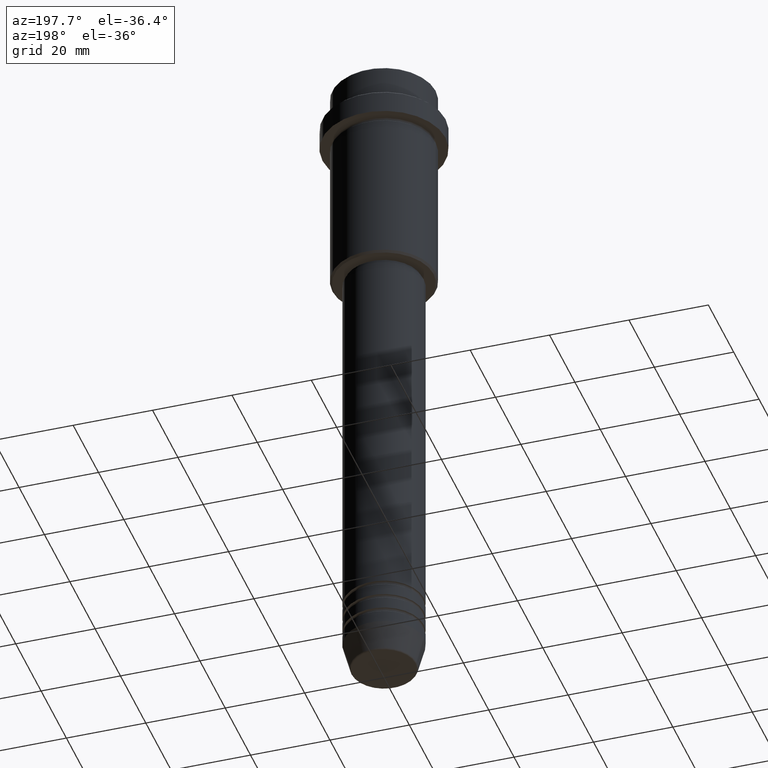
[diagram: clean part render]
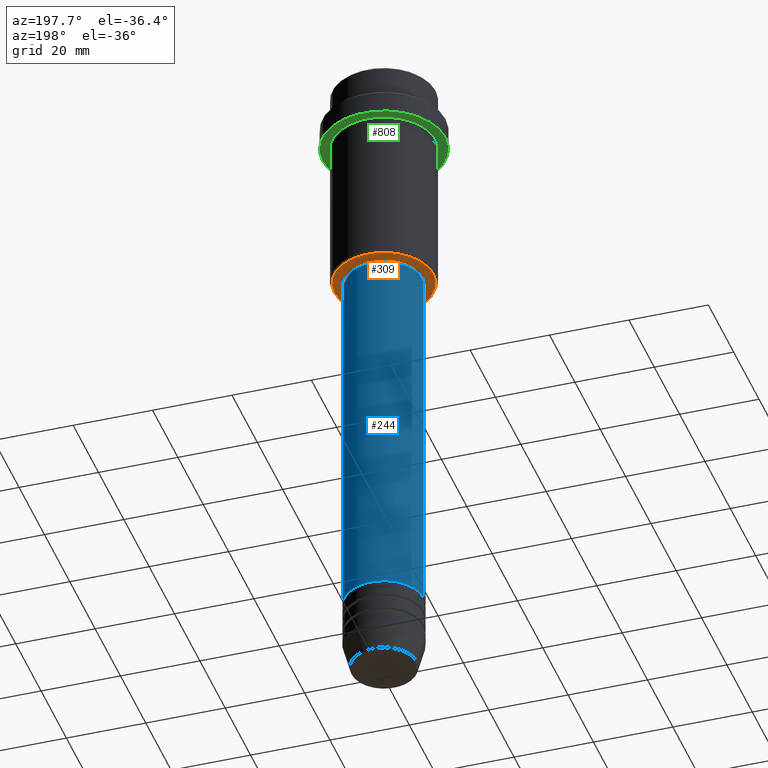
[diagram: same view with three faces highlighted in distinct colors, each labeled with its STEP entity id]
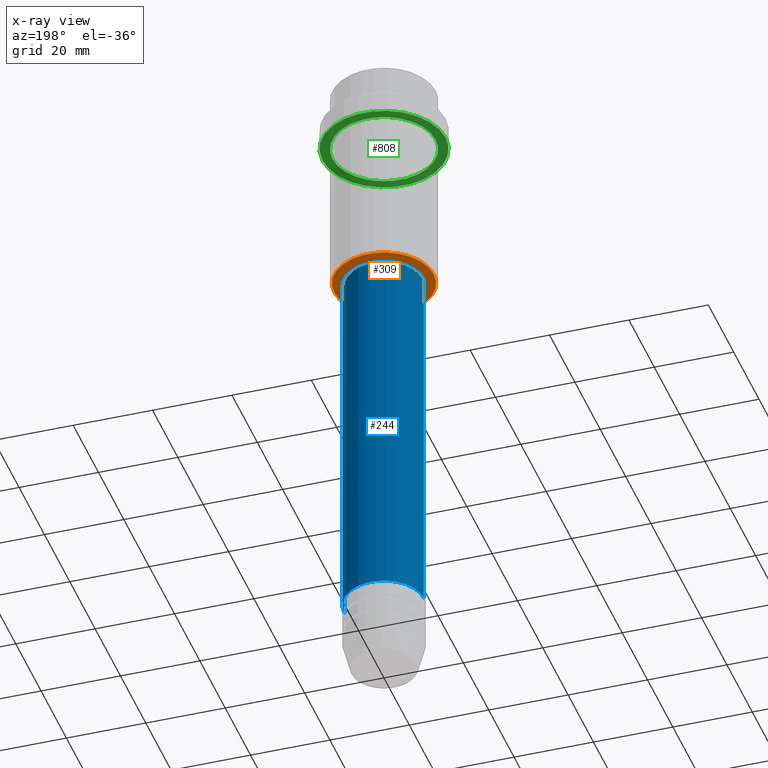
[diagram: x-ray of the same camera — body ghosted, the three highlighted faces saturated]
A machine part, auxiliary view with three faces highlighted in distinct colors.
The next image is the same camera in x-ray (body ghosted, the three faces saturated) — at least one of them is partly hidden behind the body in this view.
Their STEP definitions:

[orange] entity #309 — the highlighted planar face has unit normal (0, 0, -1).
#156 = EDGE_CURVE ( 'NONE', #224, #559, #638, .T. ) ;
#179 = DIRECTION ( 'NONE',  ( 0.000000000000000000, 0.000000000000000000, -1.000000000000000000 ) ) ;
#198 = FACE_BOUND ( 'NONE', #430, .T. ) ;
#203 = AXIS2_PLACEMENT_3D ( 'NONE', #1269, #294, #1184 ) ;
#219 = EDGE_CURVE ( 'NONE', #559, #224, #660, .T. ) ;
#224 = VERTEX_POINT ( 'NONE', #1042 ) ;
#294 = DIRECTION ( 'NONE',  ( -0.000000000000000000, -0.000000000000000000, 1.000000000000000000 ) ) ;
#309 = ADVANCED_FACE ( 'NONE', ( #397, #198 ), #1295, .T. ) ;
#397 = FACE_OUTER_BOUND ( 'NONE', #812, .T. ) ;
#413 = CARTESIAN_POINT ( 'NONE',  ( -12.49999999999996980, 1.561424668912873336E-15, -54.99999999999998579 ) ) ;
#421 = CARTESIAN_POINT ( 'NONE',  ( 0.000000000000000000, 0.000000000000000000, -54.99999999999998579 ) ) ;
#422 = DIRECTION ( 'NONE',  ( -1.000000000000000000, 0.000000000000000000, 0.000000000000000000 ) ) ;
#430 = EDGE_LOOP ( 'NONE', ( #972, #672 ) ) ;
#503 = DIRECTION ( 'NONE',  ( 1.000000000000000000, 0.000000000000000000, 0.000000000000000000 ) ) ;
#559 = VERTEX_POINT ( 'NONE', #686 ) ;
#619 = DIRECTION ( 'NONE',  ( -0.000000000000000000, -0.000000000000000000, 1.000000000000000000 ) ) ;
#638 = CIRCLE ( 'NONE', #818, 9.499999999999996447 ) ;
#660 = CIRCLE ( 'NONE', #203, 9.499999999999996447 ) ;
#672 = ORIENTED_EDGE ( 'NONE', *, *, #219, .T. ) ;
#686 = CARTESIAN_POINT ( 'NONE',  ( -9.499999999999996447, 1.163414459189985091E-15, -54.99999999999998579 ) ) ;
#699 = CIRCLE ( 'NONE', #987, 12.49999999999996980 ) ;
#749 = VERTEX_POINT ( 'NONE', #850 ) ;
#759 = ORIENTED_EDGE ( 'NONE', *, *, #1310, .T. ) ;
#812 = EDGE_LOOP ( 'NONE', ( #759, #1336 ) ) ;
#818 = AXIS2_PLACEMENT_3D ( 'NONE', #421, #619, #503 ) ;
#850 = CARTESIAN_POINT ( 'NONE',  ( 12.49999999999996980, 0.000000000000000000, -54.99999999999998579 ) ) ;
#870 = AXIS2_PLACEMENT_3D ( 'NONE', #1080, #179, #1265 ) ;
#875 = CARTESIAN_POINT ( 'NONE',  ( 0.000000000000000000, 0.000000000000000000, -54.99999999999998579 ) ) ;
#912 = CIRCLE ( 'NONE', #1099, 12.49999999999996980 ) ;
#958 = CARTESIAN_POINT ( 'NONE',  ( 0.000000000000000000, 0.000000000000000000, -54.99999999999998579 ) ) ;
#972 = ORIENTED_EDGE ( 'NONE', *, *, #156, .T. ) ;
#979 = DIRECTION ( 'NONE',  ( -1.000000000000000000, 0.000000000000000000, 0.000000000000000000 ) ) ;
#987 = AXIS2_PLACEMENT_3D ( 'NONE', #958, #1284, #979 ) ;
#1042 = CARTESIAN_POINT ( 'NONE',  ( 9.499999999999996447, 0.000000000000000000, -54.99999999999998579 ) ) ;
#1080 = CARTESIAN_POINT ( 'NONE',  ( 0.000000000000000000, 13.00000000000000000, -54.99999999999998579 ) ) ;
#1099 = AXIS2_PLACEMENT_3D ( 'NONE', #875, #1411, #422 ) ;
#1184 = DIRECTION ( 'NONE',  ( 1.000000000000000000, 0.000000000000000000, 0.000000000000000000 ) ) ;
#1265 = DIRECTION ( 'NONE',  ( -1.000000000000000000, 0.000000000000000000, -0.000000000000000000 ) ) ;
#1269 = CARTESIAN_POINT ( 'NONE',  ( 0.000000000000000000, 0.000000000000000000, -54.99999999999998579 ) ) ;
#1284 = DIRECTION ( 'NONE',  ( 0.000000000000000000, 0.000000000000000000, -1.000000000000000000 ) ) ;
#1295 = PLANE ( 'NONE',  #870 ) ;
#1310 = EDGE_CURVE ( 'NONE', #749, #1311, #699, .T. ) ;
#1311 = VERTEX_POINT ( 'NONE', #413 ) ;
#1333 = EDGE_CURVE ( 'NONE', #1311, #749, #912, .T. ) ;
#1336 = ORIENTED_EDGE ( 'NONE', *, *, #1333, .T. ) ;
#1411 = DIRECTION ( 'NONE',  ( 0.000000000000000000, 0.000000000000000000, -1.000000000000000000 ) ) ;

[blue] entity #244 — the highlighted cylindrical surface (partial cylindrical patch) has radius 10 mm, axis along (-0, -0, 1).
#22 = DIRECTION ( 'NONE',  ( -0.000000000000000000, -0.000000000000000000, 1.000000000000000000 ) ) ;
#94 = CYLINDRICAL_SURFACE ( 'NONE', #1079, 10.00000000000000178 ) ;
#136 = VERTEX_POINT ( 'NONE', #713 ) ;
#144 = CARTESIAN_POINT ( 'NONE',  ( -10.00000000000000178, 1.224646799147353454E-15, 0.000000000000000000 ) ) ;
#159 = DIRECTION ( 'NONE',  ( -0.000000000000000000, -0.000000000000000000, 1.000000000000000000 ) ) ;
#202 = FACE_OUTER_BOUND ( 'NONE', #1112, .T. ) ;
#239 = ORIENTED_EDGE ( 'NONE', *, *, #790, .F. ) ;
#244 = ADVANCED_FACE ( 'NONE', ( #202 ), #94, .T. ) ;
#315 = VERTEX_POINT ( 'NONE', #533 ) ;
#333 = DIRECTION ( 'NONE',  ( -0.000000000000000000, -0.000000000000000000, 1.000000000000000000 ) ) ;
#343 = CIRCLE ( 'NONE', #479, 10.00000000000000000 ) ;
#467 = EDGE_CURVE ( 'NONE', #136, #315, #343, .T. ) ;
#479 = AXIS2_PLACEMENT_3D ( 'NONE', #1314, #333, #1106 ) ;
#498 = AXIS2_PLACEMENT_3D ( 'NONE', #587, #1026, #919 ) ;
#533 = CARTESIAN_POINT ( 'NONE',  ( -10.00000000000000000, 1.224646799147353256E-15, -150.9999999999998579 ) ) ;
#536 = CARTESIAN_POINT ( 'NONE',  ( 0.000000000000000000, 0.000000000000000000, 0.000000000000000000 ) ) ;
#540 = CARTESIAN_POINT ( 'NONE',  ( 10.00000000000000178, 0.000000000000000000, 0.000000000000000000 ) ) ;
#545 = VECTOR ( 'NONE', #22, 1000.000000000000000 ) ;
#587 = CARTESIAN_POINT ( 'NONE',  ( 0.000000000000000000, 0.000000000000000000, -55.99999999999998579 ) ) ;
#623 = CARTESIAN_POINT ( 'NONE',  ( -10.00000000000000178, 1.224646799147353454E-15, -55.99999999999998579 ) ) ;
#647 = LINE ( 'NONE', #540, #545 ) ;
#651 = EDGE_CURVE ( 'NONE', #922, #1217, #1213, .T. ) ;
#713 = CARTESIAN_POINT ( 'NONE',  ( 10.00000000000000000, 0.000000000000000000, -150.9999999999998579 ) ) ;
#726 = DIRECTION ( 'NONE',  ( 1.000000000000000000, 0.000000000000000000, 0.000000000000000000 ) ) ;
#775 = CARTESIAN_POINT ( 'NONE',  ( 10.00000000000000178, 0.000000000000000000, -55.99999999999998579 ) ) ;
#790 = EDGE_CURVE ( 'NONE', #136, #922, #647, .T. ) ;
#804 = LINE ( 'NONE', #144, #849 ) ;
#849 = VECTOR ( 'NONE', #159, 1000.000000000000000 ) ;
#867 = ORIENTED_EDGE ( 'NONE', *, *, #1014, .T. ) ;
#919 = DIRECTION ( 'NONE',  ( 1.000000000000000000, 0.000000000000000000, 0.000000000000000000 ) ) ;
#922 = VERTEX_POINT ( 'NONE', #775 ) ;
#973 = ORIENTED_EDGE ( 'NONE', *, *, #651, .F. ) ;
#977 = DIRECTION ( 'NONE',  ( -0.000000000000000000, -0.000000000000000000, 1.000000000000000000 ) ) ;
#1014 = EDGE_CURVE ( 'NONE', #315, #1217, #804, .T. ) ;
#1026 = DIRECTION ( 'NONE',  ( -0.000000000000000000, -0.000000000000000000, 1.000000000000000000 ) ) ;
#1079 = AXIS2_PLACEMENT_3D ( 'NONE', #536, #977, #726 ) ;
#1106 = DIRECTION ( 'NONE',  ( 1.000000000000000000, 0.000000000000000000, 0.000000000000000000 ) ) ;
#1112 = EDGE_LOOP ( 'NONE', ( #1244, #867, #973, #239 ) ) ;
#1213 = CIRCLE ( 'NONE', #498, 10.00000000000000178 ) ;
#1217 = VERTEX_POINT ( 'NONE', #623 ) ;
#1244 = ORIENTED_EDGE ( 'NONE', *, *, #467, .T. ) ;
#1314 = CARTESIAN_POINT ( 'NONE',  ( 0.000000000000000000, 0.000000000000000000, -150.9999999999998579 ) ) ;

[green] entity #808 — the highlighted planar face has unit normal (0, 0, -1).
#2 = FACE_OUTER_BOUND ( 'NONE', #218, .T. ) ;
#23 = DIRECTION ( 'NONE',  ( -0.000000000000000000, -0.000000000000000000, 1.000000000000000000 ) ) ;
#119 = ORIENTED_EDGE ( 'NONE', *, *, #507, .T. ) ;
#121 = CARTESIAN_POINT ( 'NONE',  ( -15.50000000000000000, 1.898202538678397557E-15, -14.99999999999998757 ) ) ;
#135 = CARTESIAN_POINT ( 'NONE',  ( 0.000000000000000000, 0.000000000000000000, -14.99999999999998579 ) ) ;
#196 = ORIENTED_EDGE ( 'NONE', *, *, #1076, .F. ) ;
#218 = EDGE_LOOP ( 'NONE', ( #196, #351 ) ) ;
#220 = PLANE ( 'NONE',  #1267 ) ;
#233 = DIRECTION ( 'NONE',  ( -1.000000000000000000, 0.000000000000000000, 0.000000000000000000 ) ) ;
#238 = CARTESIAN_POINT ( 'NONE',  ( 0.000000000000000000, 0.000000000000000000, -14.99999999999998579 ) ) ;
#260 = CARTESIAN_POINT ( 'NONE',  ( 0.000000000000000000, 0.000000000000000000, -14.99999999999998757 ) ) ;
#268 = AXIS2_PLACEMENT_3D ( 'NONE', #1064, #1056, #1298 ) ;
#351 = ORIENTED_EDGE ( 'NONE', *, *, #758, .F. ) ;
#396 = ORIENTED_EDGE ( 'NONE', *, *, #485, .T. ) ;
#410 = AXIS2_PLACEMENT_3D ( 'NONE', #135, #1114, #1002 ) ;
#460 = CIRCLE ( 'NONE', #410, 12.99999999999999467 ) ;
#485 = EDGE_CURVE ( 'NONE', #986, #787, #1367, .T. ) ;
#507 = EDGE_CURVE ( 'NONE', #787, #986, #460, .T. ) ;
#743 = VERTEX_POINT ( 'NONE', #1372 ) ;
#757 = CARTESIAN_POINT ( 'NONE',  ( -12.99999999999999467, 0.000000000000000000, -14.99999999999998579 ) ) ;
#758 = EDGE_CURVE ( 'NONE', #896, #743, #895, .T. ) ;
#767 = CARTESIAN_POINT ( 'NONE',  ( 0.000000000000000000, 15.50000000000000000, -14.99999999999998579 ) ) ;
#781 = AXIS2_PLACEMENT_3D ( 'NONE', #260, #809, #1241 ) ;
#785 = FACE_BOUND ( 'NONE', #861, .T. ) ;
#787 = VERTEX_POINT ( 'NONE', #757 ) ;
#800 = AXIS2_PLACEMENT_3D ( 'NONE', #238, #23, #233 ) ;
#808 = ADVANCED_FACE ( 'NONE', ( #785, #2 ), #220, .T. ) ;
#809 = DIRECTION ( 'NONE',  ( -0.000000000000000000, -0.000000000000000000, 1.000000000000000000 ) ) ;
#861 = EDGE_LOOP ( 'NONE', ( #119, #396 ) ) ;
#895 = CIRCLE ( 'NONE', #268, 15.50000000000000000 ) ;
#896 = VERTEX_POINT ( 'NONE', #121 ) ;
#899 = DIRECTION ( 'NONE',  ( 0.000000000000000000, 0.000000000000000000, -1.000000000000000000 ) ) ;
#924 = CARTESIAN_POINT ( 'NONE',  ( 12.99999999999999467, 1.592040838891558504E-15, -14.99999999999998579 ) ) ;
#986 = VERTEX_POINT ( 'NONE', #924 ) ;
#1002 = DIRECTION ( 'NONE',  ( -1.000000000000000000, 0.000000000000000000, 0.000000000000000000 ) ) ;
#1024 = CIRCLE ( 'NONE', #781, 15.50000000000000000 ) ;
#1056 = DIRECTION ( 'NONE',  ( -0.000000000000000000, -0.000000000000000000, 1.000000000000000000 ) ) ;
#1064 = CARTESIAN_POINT ( 'NONE',  ( 0.000000000000000000, 0.000000000000000000, -14.99999999999998757 ) ) ;
#1076 = EDGE_CURVE ( 'NONE', #743, #896, #1024, .T. ) ;
#1114 = DIRECTION ( 'NONE',  ( -0.000000000000000000, -0.000000000000000000, 1.000000000000000000 ) ) ;
#1241 = DIRECTION ( 'NONE',  ( 1.000000000000000000, 0.000000000000000000, 0.000000000000000000 ) ) ;
#1267 = AXIS2_PLACEMENT_3D ( 'NONE', #767, #899, #1308 ) ;
#1298 = DIRECTION ( 'NONE',  ( 1.000000000000000000, 0.000000000000000000, 0.000000000000000000 ) ) ;
#1308 = DIRECTION ( 'NONE',  ( -1.000000000000000000, 0.000000000000000000, -0.000000000000000000 ) ) ;
#1367 = CIRCLE ( 'NONE', #800, 12.99999999999999467 ) ;
#1372 = CARTESIAN_POINT ( 'NONE',  ( 15.50000000000000000, 0.000000000000000000, -14.99999999999998757 ) ) ;